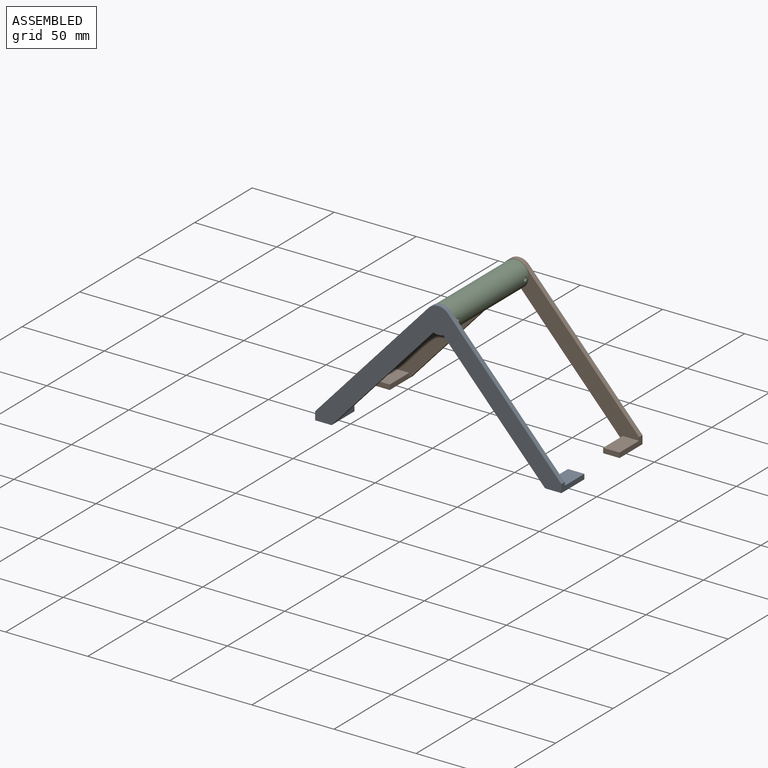
[diagram: assembled view]
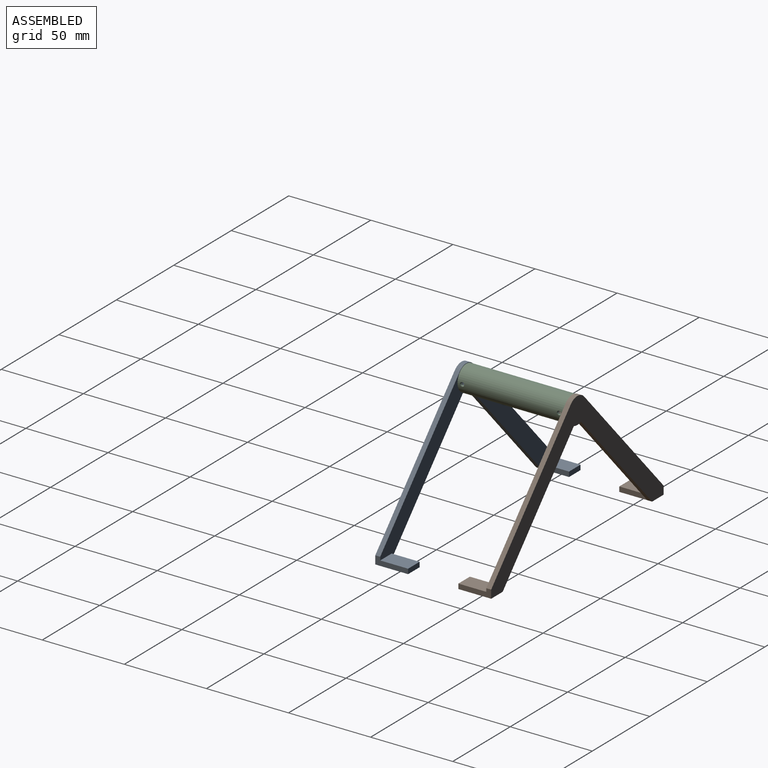
[diagram: assembled view, second angle]
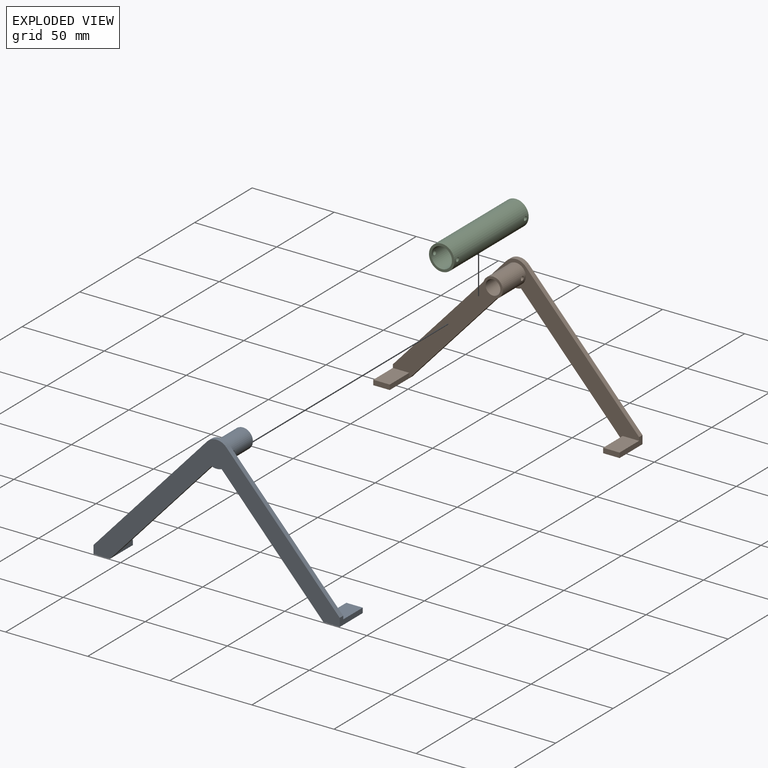
[diagram: exploded view]
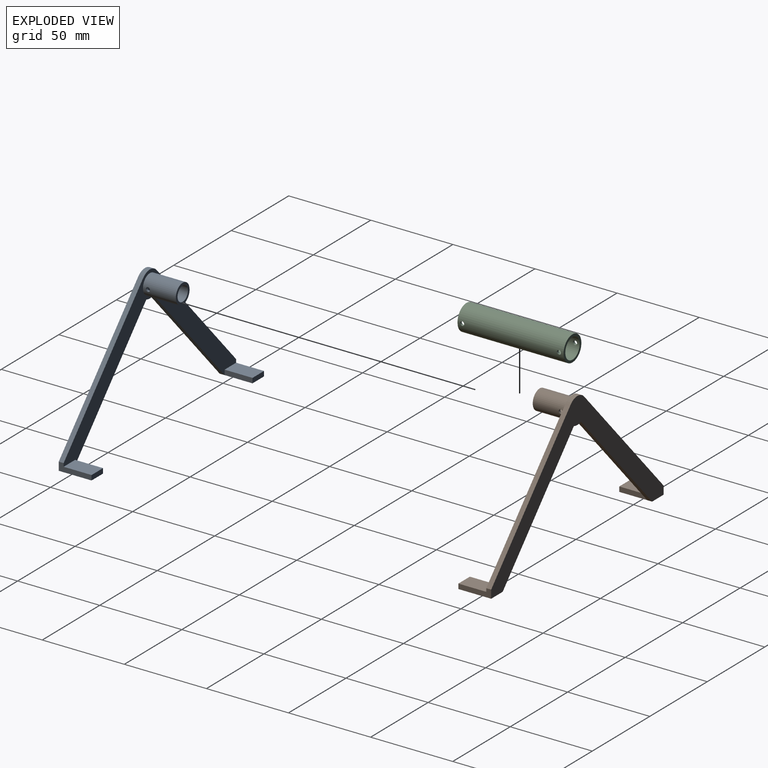
[diagram: exploded view, second angle]
ASSEMBLY  parts=3 mates=2
PART A: 24 faces, bbox 150x23x83 mm
  f0: plane 67.6x61.95mm, normal (-0.74,0,-0.68), area 275.1mm2, adj f1,f9,f10,f11
  f1: plane 20x10mm, normal (0,0,-1), area 200mm2, adj f0,f2,f11,f16,f18
  f2: plane 20x5mm, normal (1,0,0), area 66mm2, adj f1,f3,f10,f11,f17,f18
  f3: plane 75.41x69.1mm, normal (0.74,0,0.68), area 306.8mm2, adj f2,f4,f10,f11
  f4: cylinder r=8mm len=11.8mm, axis (0,-1,0), area 39.8mm2, adj f3,f5,f10,f11
  f5: plane 75.41x69.1mm, normal (-0.74,0,0.68), area 306.8mm2, adj f4,f6,f10,f11
  f6: plane 20x5mm, normal (-1,0,0), area 66mm2, adj f5,f7,f10,f11,f20,f21
  f7: plane 20x10mm, normal (0,0,-1), area 200mm2, adj f6,f8,f11,f19,f21
  f8: plane 67.6x61.95mm, normal (0.74,0,-0.68), area 275.1mm2, adj f7,f9,f10,f11
  f9: cylinder r=8mm len=6.1mm, axis (0,-1,0), area 18.8mm2, adj f0,f8,f10,f11
  f10: plane 150x83mm, normal (0,1,0), area 2100.4mm2, adj f0,f2,f3,f4,f5,f6,f8,f9
  f11: plane 150x83mm, normal (0,-1,0), area 2273.5mm2, adj f0,f1,f2,f3,f4,f5,f6,f7
  f12: cylinder r=4.5mm len=20mm, axis (0,-1,0), area 555.6mm2, adj f14,f15,f22,f23
  f13: cylinder r=6mm len=20mm, axis (0,-1,0), area 744.1mm2, adj f10,f14,f22,f23
  f14: plane 12x12mm, normal (0,1,0), area 49.5mm2, adj f12,f13
  f15: plane 9x9mm, normal (0,1,0), area 63.6mm2, adj f12
  f16: plane 17x3mm, normal (-1,0,0), area 51mm2, adj f1,f10,f17,f18
  f17: plane 17x10mm, normal (0,0,1), area 170mm2, adj f2,f10,f16,f18
  f18: plane 10x3mm, normal (0,1,0), area 30mm2, adj f1,f2,f16,f17
  f19: plane 17x3mm, normal (1,0,0), area 51mm2, adj f7,f10,f20,f21
  f20: plane 17x10mm, normal (0,0,1), area 170mm2, adj f6,f10,f19,f21
  f21: plane 10x3mm, normal (0,1,0), area 30mm2, adj f6,f7,f19,f20
  f22: cylinder r=1.25mm len=2.5mm, axis (1,0,0), area 12mm2, adj f12,f13
  f23: cylinder r=1.25mm len=2.5mm, axis (1,0,0), area 12mm2, adj f12,f13
PART B: same geometry as A
PART C: 8 faces, bbox 64.6x15.5x15.5 mm
  f0: cylinder r=6.25mm len=64.6mm, axis (-1,0,0), area 2517.1mm2, adj f2,f3,f4,f5,f6,f7
  f1: cylinder r=7.75mm len=64.6mm, axis (-1,0,0), area 3125.9mm2, adj f2,f3,f4,f5,f6,f7
  f2: plane 15.5x15.5mm, normal (1,0,0), area 66mm2, adj f0,f1
  f3: plane 15.5x15.5mm, normal (-1,0,0), area 66mm2, adj f0,f1
  f4: cylinder r=1.25mm len=2.5mm, axis (0,-1,0), area 11.9mm2, adj f0,f1
  f5: cylinder r=1.25mm len=2.5mm, axis (0,-1,0), area 11.9mm2, adj f0,f1
  f6: cylinder r=1.25mm len=2.5mm, axis (0,-1,0), area 11.9mm2, adj f0,f1
  f7: cylinder r=1.25mm len=2.5mm, axis (0,-1,0), area 11.9mm2, adj f0,f1
PLACE A t=(-38.44,-11.59,-8.34)mm fixed
PLACE B rot(axis=(0,0,1),180deg) t=(-38.44,59.01,-8.34)mm
PLACE C rot(axis=(0,0,1),90deg) t=(-38.44,23.71,66.66)mm
MATE fastened B.f4 <-> C.f0  axis (0,1,0) through (-38.44,56.01,66.66)mm
MATE fastened A.f4 <-> C.f0  axis (0,-1,0) through (-38.44,-8.59,66.66)mm
